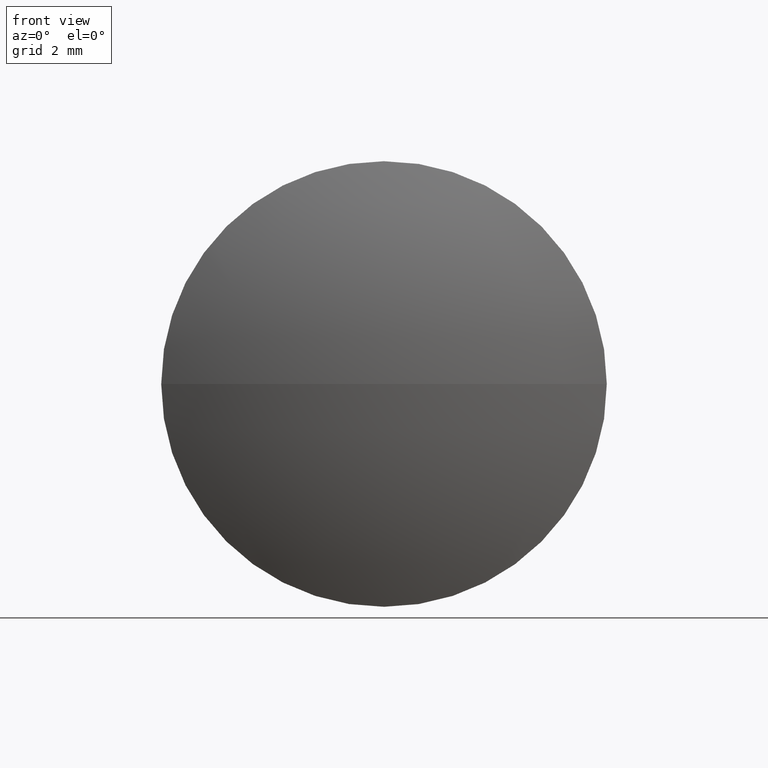
[diagram: clean part render]
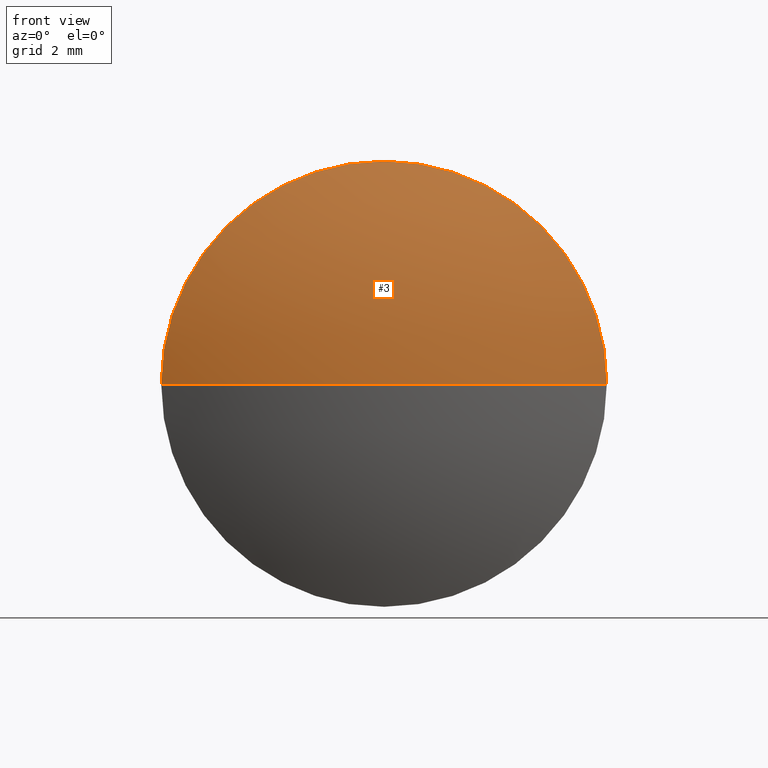
[diagram: same view with one face highlighted and labeled with its STEP entity id]
A machine part, front view. The second image highlights one B-rep face of the part: STEP entity #3.
In plain terms, the highlighted spherical surface has radius 12.75 mm.
Its self-contained STEP definition (entity closure, byte-faithful):
#3 = ADVANCED_FACE ( 'NONE', ( #27 ), #195, .T. ) ;
#14 = VERTEX_POINT ( 'NONE', #219 ) ;
#17 = EDGE_CURVE ( 'NONE', #14, #69, #279, .T. ) ;
#20 = DIRECTION ( 'NONE',  ( 1.000000000000000000, 3.469446951953631100E-015, 0.0000000000000000000 ) ) ;
#24 = ORIENTED_EDGE ( 'NONE', *, *, #276, .T. ) ;
#27 = FACE_OUTER_BOUND ( 'NONE', #75, .T. ) ;
#41 = CARTESIAN_POINT ( 'NONE',  ( 2.967759138016635000E-014, -8.499999999999952000, 0.0000000000000000000 ) ) ;
#49 = DIRECTION ( 'NONE',  ( -1.000000000000000000, -3.503461137757080400E-015, 0.0000000000000000000 ) ) ;
#54 = AXIS2_PLACEMENT_3D ( 'NONE', #41, #126, #20 ) ;
#56 = VERTEX_POINT ( 'NONE', #143 ) ;
#61 = DIRECTION ( 'NONE',  ( 1.000000000000000000, 0.0000000000000000000, 0.0000000000000000000 ) ) ;
#63 = CARTESIAN_POINT ( 'NONE',  ( 4.373567473579352000E-014, -10.00000000000000000, 0.0000000000000000000 ) ) ;
#69 = VERTEX_POINT ( 'NONE', #63 ) ;
#75 = EDGE_LOOP ( 'NONE', ( #185, #24, #292 ) ) ;
#93 = CIRCLE ( 'NONE', #298, 12.75000000000000200 ) ;
#100 = DIRECTION ( 'NONE',  ( -1.224646799147353200E-016, -4.275831445896958600E-031, -1.000000000000000000 ) ) ;
#104 = EDGE_CURVE ( 'NONE', #56, #69, #93, .T. ) ;
#108 = AXIS2_PLACEMENT_3D ( 'NONE', #309, #289, #49 ) ;
#126 = DIRECTION ( 'NONE',  ( 3.491481338843133400E-015, -1.000000000000000000, -0.0000000000000000000 ) ) ;
#132 = AXIS2_PLACEMENT_3D ( 'NONE', #264, #100, #291 ) ;
#143 = CARTESIAN_POINT ( 'NONE',  ( -5.999999999999941400, -8.499999999999973400, 7.347880794884083300E-016 ) ) ;
#185 = ORIENTED_EDGE ( 'NONE', *, *, #17, .F. ) ;
#195 = SPHERICAL_SURFACE ( 'NONE', #108, 12.75000000000000200 ) ;
#212 = CARTESIAN_POINT ( 'NONE',  ( 0.0000000000000000000, 2.750000000000002700, 0.0000000000000000000 ) ) ;
#219 = CARTESIAN_POINT ( 'NONE',  ( 6.000000000000000000, -8.499999999999930700, 0.0000000000000000000 ) ) ;
#264 = CARTESIAN_POINT ( 'NONE',  ( 0.0000000000000000000, 2.750000000000002700, 0.0000000000000000000 ) ) ;
#276 = EDGE_CURVE ( 'NONE', #14, #56, #314, .T. ) ;
#279 = CIRCLE ( 'NONE', #132, 12.75000000000000200 ) ;
#289 = DIRECTION ( 'NONE',  ( -0.0000000000000000000, 0.0000000000000000000, -1.000000000000000000 ) ) ;
#291 = DIRECTION ( 'NONE',  ( -1.000000000000000000, 0.0000000000000000000, 1.224646799147353200E-016 ) ) ;
#292 = ORIENTED_EDGE ( 'NONE', *, *, #104, .T. ) ;
#298 = AXIS2_PLACEMENT_3D ( 'NONE', #212, #305, #61 ) ;
#305 = DIRECTION ( 'NONE',  ( 0.0000000000000000000, 0.0000000000000000000, 1.000000000000000000 ) ) ;
#309 = CARTESIAN_POINT ( 'NONE',  ( 0.0000000000000000000, 2.750000000000002700, 0.0000000000000000000 ) ) ;
#314 = CIRCLE ( 'NONE', #54, 5.999999999999970700 ) ;